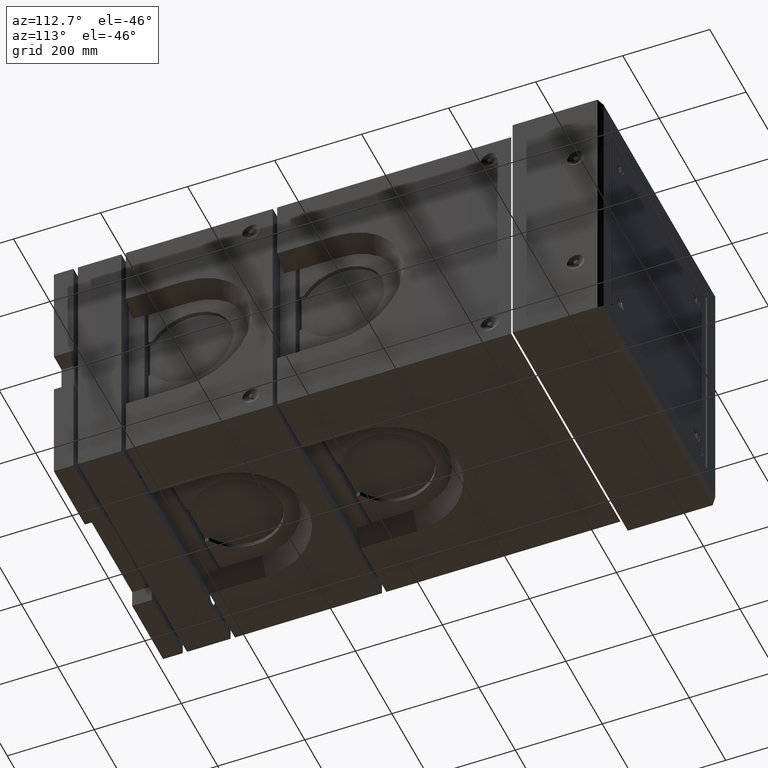
[diagram: clean part render]
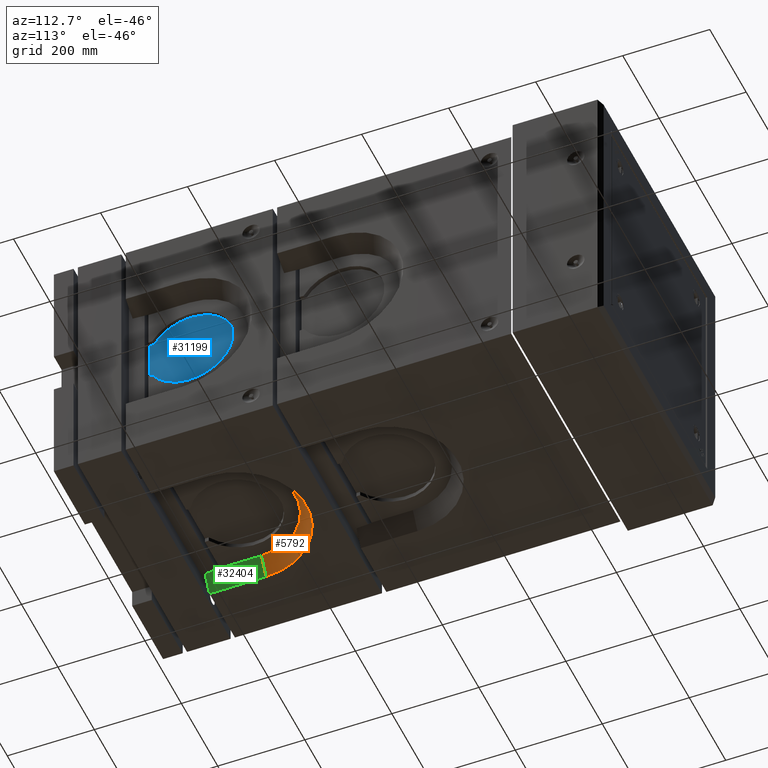
[diagram: same view with three faces highlighted in distinct colors, each labeled with its STEP entity id]
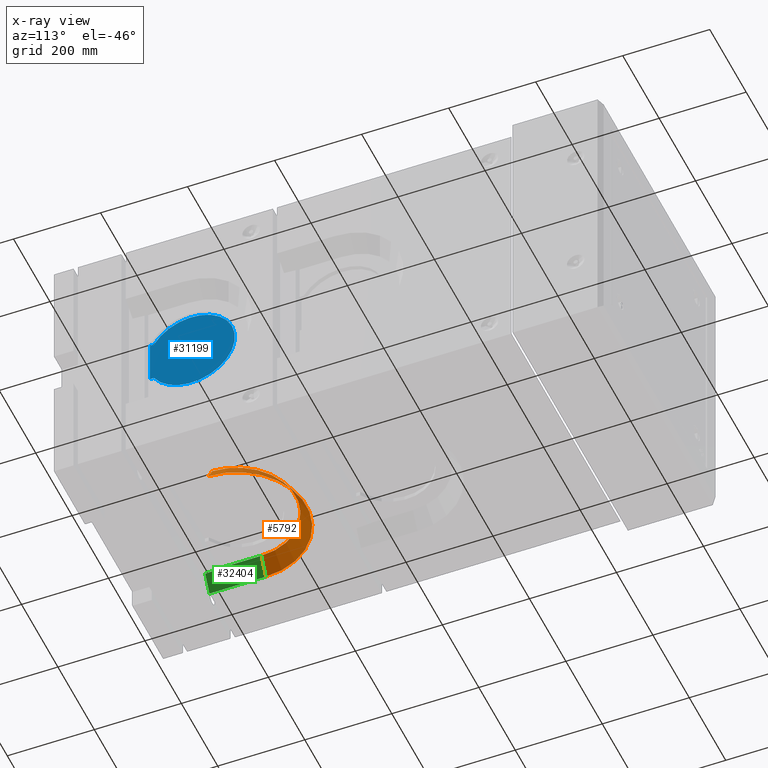
[diagram: x-ray of the same camera — body ghosted, the three highlighted faces saturated]
A machine part, auxiliary view with three faces highlighted in distinct colors.
The next image is the same camera in x-ray (body ghosted, the three faces saturated) — at least one of them is partly hidden behind the body in this view.
Their STEP definitions:

[orange] entity #5792 — the highlighted conical surface has half-angle 32 deg.
#1130 = CARTESIAN_POINT ( 'NONE',  ( 135.0052259236268242, 294.9999999999996021, -260.0000000000000000 ) ) ;
#3070 = EDGE_LOOP ( 'NONE', ( #20550, #5755, #23381, #11402 ) ) ;
#3636 = AXIS2_PLACEMENT_3D ( 'NONE', #33217, #17463, #25502 ) ;
#4451 = CARTESIAN_POINT ( 'NONE',  ( 0.0000000000000000000, 294.9999999999996021, -300.0000000000000000 ) ) ;
#4488 = LINE ( 'NONE', #30756, #25765 ) ;
#5065 = CIRCLE ( 'NONE', #3636, 159.9999999999999716 ) ;
#5755 = ORIENTED_EDGE ( 'NONE', *, *, #13327, .F. ) ;
#5792 = ADVANCED_FACE ( 'NONE', ( #26529 ), #22418, .F. ) ;
#6381 = DIRECTION ( 'NONE',  ( -0.5299192642332060110, 0.0000000000000000000, -0.8480480961564252906 ) ) ;
#9081 = VERTEX_POINT ( 'NONE', #12434 ) ;
#10634 = EDGE_CURVE ( 'NONE', #9081, #18056, #5065, .T. ) ;
#11402 = ORIENTED_EDGE ( 'NONE', *, *, #32207, .T. ) ;
#11509 = VECTOR ( 'NONE', #6381, 1000.000000000000114 ) ;
#12434 = CARTESIAN_POINT ( 'NONE',  ( 160.0000000000000000, 294.9999999999996021, -300.0000000000000000 ) ) ;
#13174 = VERTEX_POINT ( 'NONE', #1130 ) ;
#13327 = EDGE_CURVE ( 'NONE', #13174, #9081, #4488, .T. ) ;
#14536 = DIRECTION ( 'NONE',  ( -1.000000000000000000, 0.0000000000000000000, 0.0000000000000000000 ) ) ;
#15256 = VERTEX_POINT ( 'NONE', #27230 ) ;
#17463 = DIRECTION ( 'NONE',  ( -0.0000000000000000000, -0.0000000000000000000, 1.000000000000000000 ) ) ;
#18056 = VERTEX_POINT ( 'NONE', #20495 ) ;
#18473 = LINE ( 'NONE', #27078, #11509 ) ;
#20018 = AXIS2_PLACEMENT_3D ( 'NONE', #4451, #28354, #22639 ) ;
#20495 = CARTESIAN_POINT ( 'NONE',  ( -159.9999999999999716, 294.9999999999996021, -300.0000000000000000 ) ) ;
#20550 = ORIENTED_EDGE ( 'NONE', *, *, #10634, .F. ) ;
#22352 = AXIS2_PLACEMENT_3D ( 'NONE', #33146, #30248, #14536 ) ;
#22418 = CONICAL_SURFACE ( 'NONE', #20018, 159.9999999999999716, 0.5585053606381866764 ) ;
#22639 = DIRECTION ( 'NONE',  ( 1.000000000000000000, 0.0000000000000000000, 0.0000000000000000000 ) ) ;
#23381 = ORIENTED_EDGE ( 'NONE', *, *, #26209, .T. ) ;
#25502 = DIRECTION ( 'NONE',  ( 1.000000000000000000, 0.0000000000000000000, 0.0000000000000000000 ) ) ;
#25765 = VECTOR ( 'NONE', #30882, 1000.000000000000114 ) ;
#26209 = EDGE_CURVE ( 'NONE', #13174, #15256, #29429, .T. ) ;
#26529 = FACE_OUTER_BOUND ( 'NONE', #3070, .T. ) ;
#27078 = CARTESIAN_POINT ( 'NONE',  ( -159.9999999999999716, 294.9999999999996021, -300.0000000000000000 ) ) ;
#27230 = CARTESIAN_POINT ( 'NONE',  ( -135.0052259236267957, 294.9999999999996021, -260.0000000000000000 ) ) ;
#28354 = DIRECTION ( 'NONE',  ( 0.0000000000000000000, 0.0000000000000000000, -1.000000000000000000 ) ) ;
#29429 = CIRCLE ( 'NONE', #22352, 135.0052259236268242 ) ;
#30248 = DIRECTION ( 'NONE',  ( -0.0000000000000000000, -0.0000000000000000000, 1.000000000000000000 ) ) ;
#30756 = CARTESIAN_POINT ( 'NONE',  ( 159.9999999999999716, 294.9999999999996021, -300.0000000000000000 ) ) ;
#30882 = DIRECTION ( 'NONE',  ( 0.5299192642332060110, 0.0000000000000000000, -0.8480480961564252906 ) ) ;
#32207 = EDGE_CURVE ( 'NONE', #15256, #18056, #18473, .T. ) ;
#33146 = CARTESIAN_POINT ( 'NONE',  ( 0.0000000000000000000, 294.9999999999996021, -260.0000000000000000 ) ) ;
#33217 = CARTESIAN_POINT ( 'NONE',  ( 0.0000000000000000000, 294.9999999999996021, -300.0000000000000000 ) ) ;

[blue] entity #31199 — the highlighted planar face has unit normal (1, 0, -0).
#365 = EDGE_CURVE ( 'NONE', #19253, #25876, #24123, .T. ) ;
#4214 = AXIS2_PLACEMENT_3D ( 'NONE', #21223, #7762, #20792 ) ;
#4512 = LINE ( 'NONE', #15918, #17983 ) ;
#5604 = CARTESIAN_POINT ( 'NONE',  ( 250.0000000000000000, 199.9999999999996021, -262.0000000000000000 ) ) ;
#6170 = VECTOR ( 'NONE', #28883, 1000.000000000000000 ) ;
#7762 = DIRECTION ( 'NONE',  ( -1.000000000000000000, -0.0000000000000000000, 0.0000000000000000000 ) ) ;
#8431 = AXIS2_PLACEMENT_3D ( 'NONE', #15298, #33694, #17718 ) ;
#8506 = LINE ( 'NONE', #5604, #32265 ) ;
#8932 = CARTESIAN_POINT ( 'NONE',  ( 250.0000000000000000, 208.9825599078880316, 50.99999999999999289 ) ) ;
#10350 = CARTESIAN_POINT ( 'NONE',  ( 250.0000000000000000, 208.9825599078880316, 50.99999999999999289 ) ) ;
#14540 = EDGE_CURVE ( 'NONE', #24794, #18716, #8506, .T. ) ;
#15175 = CARTESIAN_POINT ( 'NONE',  ( 250.0000000000000000, 208.9825599078880316, -50.99999999999999289 ) ) ;
#15298 = CARTESIAN_POINT ( 'NONE',  ( 250.0000000000000000, 294.9999999999996021, 0.0000000000000000000 ) ) ;
#15918 = CARTESIAN_POINT ( 'NONE',  ( 250.0000000000000000, 208.9825599078880316, -50.99999999999999289 ) ) ;
#16974 = CARTESIAN_POINT ( 'NONE',  ( 250.0000000000000000, 199.9999999999996021, 50.99999999999999289 ) ) ;
#17456 = EDGE_CURVE ( 'NONE', #25876, #18716, #4512, .T. ) ;
#17718 = DIRECTION ( 'NONE',  ( 0.0000000000000000000, 0.0000000000000000000, 1.000000000000000000 ) ) ;
#17983 = VECTOR ( 'NONE', #32351, 1000.000000000000000 ) ;
#18716 = VERTEX_POINT ( 'NONE', #26959 ) ;
#19253 = VERTEX_POINT ( 'NONE', #8932 ) ;
#20762 = ORIENTED_EDGE ( 'NONE', *, *, #17456, .F. ) ;
#20792 = DIRECTION ( 'NONE',  ( 0.0000000000000000000, 0.0000000000000000000, 1.000000000000000000 ) ) ;
#21223 = CARTESIAN_POINT ( 'NONE',  ( 250.0000000000000000, 294.9999999999996021, 0.0000000000000000000 ) ) ;
#21539 = EDGE_LOOP ( 'NONE', ( #29312, #20762, #23744, #23862 ) ) ;
#23080 = EDGE_CURVE ( 'NONE', #24794, #19253, #27042, .T. ) ;
#23744 = ORIENTED_EDGE ( 'NONE', *, *, #365, .F. ) ;
#23862 = ORIENTED_EDGE ( 'NONE', *, *, #23080, .F. ) ;
#24123 = CIRCLE ( 'NONE', #4214, 100.0000000000000000 ) ;
#24794 = VERTEX_POINT ( 'NONE', #16974 ) ;
#25876 = VERTEX_POINT ( 'NONE', #15175 ) ;
#26959 = CARTESIAN_POINT ( 'NONE',  ( 250.0000000000000000, 199.9999999999996021, -50.99999999999999289 ) ) ;
#27042 = LINE ( 'NONE', #10350, #6170 ) ;
#28883 = DIRECTION ( 'NONE',  ( 0.0000000000000000000, 1.000000000000000000, -3.700743415417188632E-16 ) ) ;
#29312 = ORIENTED_EDGE ( 'NONE', *, *, #14540, .T. ) ;
#29668 = FACE_OUTER_BOUND ( 'NONE', #21539, .T. ) ;
#31199 = ADVANCED_FACE ( 'NONE', ( #29668 ), #33469, .T. ) ;
#31585 = DIRECTION ( 'NONE',  ( 0.0000000000000000000, 0.0000000000000000000, -1.000000000000000000 ) ) ;
#32265 = VECTOR ( 'NONE', #31585, 1000.000000000000000 ) ;
#32351 = DIRECTION ( 'NONE',  ( 0.0000000000000000000, -1.000000000000000000, 0.0000000000000000000 ) ) ;
#33469 = PLANE ( 'NONE',  #8431 ) ;
#33694 = DIRECTION ( 'NONE',  ( 1.000000000000000000, 0.0000000000000000000, -0.0000000000000000000 ) ) ;

[green] entity #32404 — the highlighted planar face has unit normal (-0.848, 0, 0.5299).
#220 = DIRECTION ( 'NONE',  ( 0.0000000000000000000, -1.000000000000000000, -0.0000000000000000000 ) ) ;
#297 = EDGE_CURVE ( 'NONE', #30827, #22241, #10227, .T. ) ;
#2064 = CARTESIAN_POINT ( 'NONE',  ( -159.9999999999999716, 44.99999999999956657, -300.0000000000000000 ) ) ;
#2522 = VERTEX_POINT ( 'NONE', #31732 ) ;
#4384 = LINE ( 'NONE', #26844, #12542 ) ;
#5397 = FACE_OUTER_BOUND ( 'NONE', #10514, .T. ) ;
#5494 = CARTESIAN_POINT ( 'NONE',  ( -159.9999999999999716, 44.99999999999956657, -300.0000000000000000 ) ) ;
#6381 = DIRECTION ( 'NONE',  ( -0.5299192642332060110, 0.0000000000000000000, -0.8480480961564252906 ) ) ;
#7417 = CARTESIAN_POINT ( 'NONE',  ( 70.32419416498564146, 164.9999999999996021, 68.59576079578080510 ) ) ;
#8673 = CARTESIAN_POINT ( 'NONE',  ( -24.41922509281063824, 199.9999999999996021, -83.02540444188311142 ) ) ;
#9675 = DIRECTION ( 'NONE',  ( 0.5299192642332060110, -0.0000000000000000000, 0.8480480961564252906 ) ) ;
#9726 = ORIENTED_EDGE ( 'NONE', *, *, #22365, .T. ) ;
#9769 = CARTESIAN_POINT ( 'NONE',  ( -159.9999999999999716, 164.9999999999996021, -300.0000000000000000 ) ) ;
#9963 = DIRECTION ( 'NONE',  ( 0.5299192642332060110, 0.0000000000000000000, 0.8480480961564252906 ) ) ;
#10227 = LINE ( 'NONE', #7417, #22498 ) ;
#10514 = EDGE_LOOP ( 'NONE', ( #32877, #21091, #19910, #16388, #12398, #9726 ) ) ;
#11509 = VECTOR ( 'NONE', #6381, 1000.000000000000114 ) ;
#12120 = PLANE ( 'NONE',  #31045 ) ;
#12398 = ORIENTED_EDGE ( 'NONE', *, *, #32207, .F. ) ;
#12542 = VECTOR ( 'NONE', #16153, 1000.000000000000000 ) ;
#13130 = VECTOR ( 'NONE', #27241, 1000.000000000000000 ) ;
#13698 = DIRECTION ( 'NONE',  ( -0.5299192642332060110, -0.0000000000000000000, -0.8480480961564252906 ) ) ;
#15256 = VERTEX_POINT ( 'NONE', #27230 ) ;
#15983 = VECTOR ( 'NONE', #220, 1000.000000000000000 ) ;
#16153 = DIRECTION ( 'NONE',  ( -0.02615785896867780028, -0.9987809549098705109, -0.04186132491336108652 ) ) ;
#16388 = ORIENTED_EDGE ( 'NONE', *, *, #32868, .F. ) ;
#18056 = VERTEX_POINT ( 'NONE', #20495 ) ;
#18473 = LINE ( 'NONE', #27078, #11509 ) ;
#18724 = EDGE_CURVE ( 'NONE', #2522, #22241, #4384, .T. ) ;
#19910 = ORIENTED_EDGE ( 'NONE', *, *, #297, .F. ) ;
#20495 = CARTESIAN_POINT ( 'NONE',  ( -159.9999999999999716, 294.9999999999996021, -300.0000000000000000 ) ) ;
#20779 = VECTOR ( 'NONE', #13698, 1000.000000000000114 ) ;
#20928 = LINE ( 'NONE', #24248, #13130 ) ;
#20972 = LINE ( 'NONE', #5494, #15983 ) ;
#21091 = ORIENTED_EDGE ( 'NONE', *, *, #18724, .T. ) ;
#21417 = CARTESIAN_POINT ( 'NONE',  ( -136.2549646274454744, 164.9999999999996021, -262.0000000000000000 ) ) ;
#21704 = VERTEX_POINT ( 'NONE', #24110 ) ;
#22241 = VERTEX_POINT ( 'NONE', #21417 ) ;
#22365 = EDGE_CURVE ( 'NONE', #15256, #21704, #20928, .T. ) ;
#22498 = VECTOR ( 'NONE', #9675, 1000.000000000000114 ) ;
#22882 = DIRECTION ( 'NONE',  ( -0.8480480961564252906, 0.0000000000000000000, 0.5299192642332060110 ) ) ;
#24110 = CARTESIAN_POINT ( 'NONE',  ( -135.0052259236267957, 199.9999999999996021, -260.0000000000000000 ) ) ;
#24248 = CARTESIAN_POINT ( 'NONE',  ( -135.0052259236267957, 294.9999999999996021, -260.0000000000000000 ) ) ;
#26844 = CARTESIAN_POINT ( 'NONE',  ( -136.3410036038981730, 161.7147888073029662, -262.1376911448605824 ) ) ;
#26934 = EDGE_CURVE ( 'NONE', #21704, #2522, #31018, .T. ) ;
#27078 = CARTESIAN_POINT ( 'NONE',  ( -159.9999999999999716, 294.9999999999996021, -300.0000000000000000 ) ) ;
#27230 = CARTESIAN_POINT ( 'NONE',  ( -135.0052259236267957, 294.9999999999996021, -260.0000000000000000 ) ) ;
#27241 = DIRECTION ( 'NONE',  ( -0.0000000000000000000, -1.000000000000000000, -0.0000000000000000000 ) ) ;
#30827 = VERTEX_POINT ( 'NONE', #9769 ) ;
#31018 = LINE ( 'NONE', #8673, #20779 ) ;
#31045 = AXIS2_PLACEMENT_3D ( 'NONE', #2064, #22882, #9963 ) ;
#31732 = CARTESIAN_POINT ( 'NONE',  ( -135.3383221350119641, 199.9999999999996021, -260.5330653685723519 ) ) ;
#32207 = EDGE_CURVE ( 'NONE', #15256, #18056, #18473, .T. ) ;
#32404 = ADVANCED_FACE ( 'NONE', ( #5397 ), #12120, .F. ) ;
#32868 = EDGE_CURVE ( 'NONE', #18056, #30827, #20972, .T. ) ;
#32877 = ORIENTED_EDGE ( 'NONE', *, *, #26934, .T. ) ;